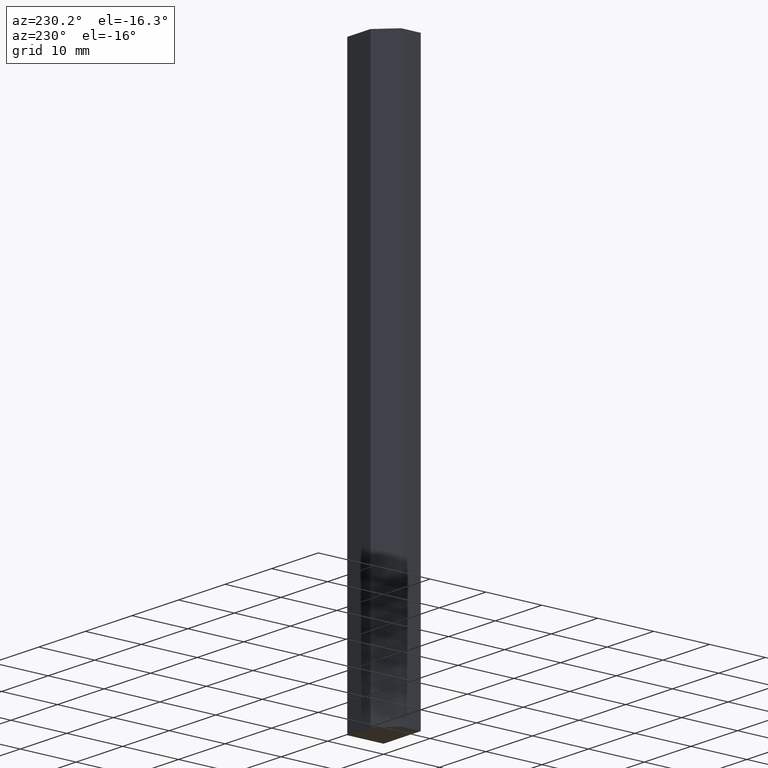
[diagram: clean part render]
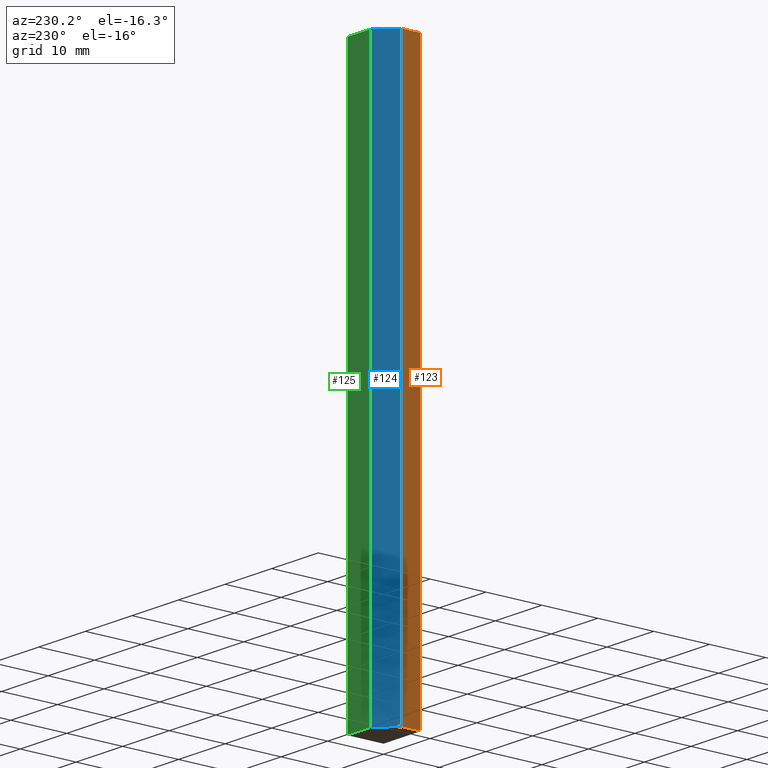
[diagram: same view with three faces highlighted in distinct colors, each labeled with its STEP entity id]
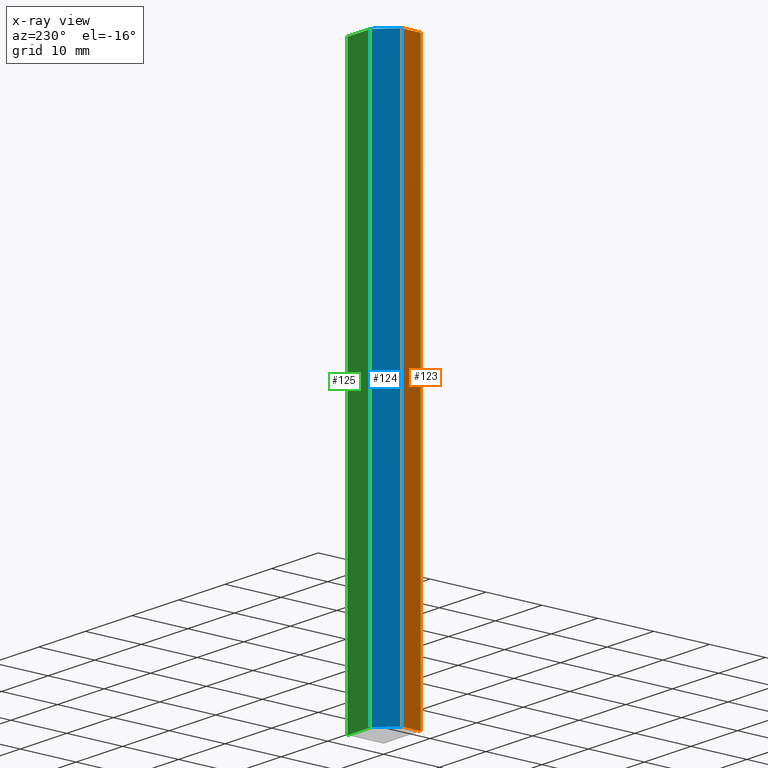
[diagram: x-ray of the same camera — body ghosted, the three highlighted faces saturated]
A machine part, auxiliary view with three faces highlighted in distinct colors.
The next image is the same camera in x-ray (body ghosted, the three faces saturated) — at least one of them is partly hidden behind the body in this view.
Their STEP definitions:

[orange] entity #123 — the highlighted planar face has unit normal (-1, 0, 0).
#17=FACE_OUTER_BOUND('',#24,.T.);
#24=EDGE_LOOP('',(#90,#91,#92,#93));
#32=LINE('',#198,#47);
#35=LINE('',#205,#50);
#36=LINE('',#206,#51);
#37=LINE('',#207,#52);
#47=VECTOR('',#165,10.);
#50=VECTOR('',#170,10.);
#51=VECTOR('',#171,10.);
#52=VECTOR('',#172,10.);
#62=VERTEX_POINT('',#195);
#63=VERTEX_POINT('',#197);
#65=VERTEX_POINT('',#203);
#66=VERTEX_POINT('',#204);
#72=EDGE_CURVE('',#63,#62,#32,.T.);
#75=EDGE_CURVE('',#65,#66,#35,.T.);
#76=EDGE_CURVE('',#66,#63,#36,.T.);
#77=EDGE_CURVE('',#65,#62,#37,.T.);
#90=ORIENTED_EDGE('',*,*,#75,.T.);
#91=ORIENTED_EDGE('',*,*,#76,.T.);
#92=ORIENTED_EDGE('',*,*,#72,.T.);
#93=ORIENTED_EDGE('',*,*,#77,.F.);
#116=PLANE('',#153);
#123=ADVANCED_FACE('',(#17),#116,.T.);
#153=AXIS2_PLACEMENT_3D('',#202,#168,#169);
#165=DIRECTION('',(0.,-1.,0.));
#168=DIRECTION('center_axis',(-1.,0.,0.));
#169=DIRECTION('ref_axis',(0.,0.,1.));
#170=DIRECTION('',(0.,1.,0.));
#171=DIRECTION('',(0.,0.,-1.));
#172=DIRECTION('',(0.,0.,-1.));
#195=CARTESIAN_POINT('',(-8.,1.11022302462516E-15,-50.));
#197=CARTESIAN_POINT('',(-8.,3.5,-50.));
#198=CARTESIAN_POINT('',(-8.,1.11022302462516E-15,-50.));
#202=CARTESIAN_POINT('Origin',(-8.,1.11022302462516E-15,0.));
#203=CARTESIAN_POINT('',(-8.,1.11022302462516E-15,50.));
#204=CARTESIAN_POINT('',(-8.,3.5,50.));
#205=CARTESIAN_POINT('',(-8.,1.11022302462516E-15,50.));
#206=CARTESIAN_POINT('',(-8.,3.5,0.));
#207=CARTESIAN_POINT('',(-8.,1.11022302462516E-15,0.));

[blue] entity #124 — the highlighted planar face has unit normal (-0.7071, 0.7071, 0).
#18=FACE_OUTER_BOUND('',#25,.T.);
#25=EDGE_LOOP('',(#94,#95,#96,#97));
#33=LINE('',#200,#48);
#36=LINE('',#206,#51);
#38=LINE('',#210,#53);
#39=LINE('',#211,#54);
#48=VECTOR('',#166,10.);
#51=VECTOR('',#171,10.);
#53=VECTOR('',#175,10.);
#54=VECTOR('',#176,10.);
#63=VERTEX_POINT('',#197);
#64=VERTEX_POINT('',#199);
#66=VERTEX_POINT('',#204);
#67=VERTEX_POINT('',#209);
#73=EDGE_CURVE('',#64,#63,#33,.T.);
#76=EDGE_CURVE('',#66,#63,#36,.T.);
#78=EDGE_CURVE('',#66,#67,#38,.T.);
#79=EDGE_CURVE('',#67,#64,#39,.T.);
#94=ORIENTED_EDGE('',*,*,#78,.T.);
#95=ORIENTED_EDGE('',*,*,#79,.T.);
#96=ORIENTED_EDGE('',*,*,#73,.T.);
#97=ORIENTED_EDGE('',*,*,#76,.F.);
#117=PLANE('',#154);
#124=ADVANCED_FACE('',(#18),#117,.T.);
#154=AXIS2_PLACEMENT_3D('',#208,#173,#174);
#166=DIRECTION('',(-0.707106781186547,-0.707106781186548,0.));
#171=DIRECTION('',(0.,0.,-1.));
#173=DIRECTION('center_axis',(-0.707106781186548,0.707106781186547,0.));
#174=DIRECTION('ref_axis',(0.,0.,1.));
#175=DIRECTION('',(0.707106781186547,0.707106781186548,0.));
#176=DIRECTION('',(0.,0.,-1.));
#197=CARTESIAN_POINT('',(-8.,3.5,-50.));
#199=CARTESIAN_POINT('',(-5.,6.5,-50.));
#200=CARTESIAN_POINT('',(-8.,3.5,-50.));
#204=CARTESIAN_POINT('',(-8.,3.5,50.));
#206=CARTESIAN_POINT('',(-8.,3.5,0.));
#208=CARTESIAN_POINT('Origin',(-8.,3.5,0.));
#209=CARTESIAN_POINT('',(-5.,6.5,50.));
#210=CARTESIAN_POINT('',(-8.,3.5,50.));
#211=CARTESIAN_POINT('',(-5.,6.5,0.));

[green] entity #125 — the highlighted planar face has unit normal (-0, 1, 0).
#19=FACE_OUTER_BOUND('',#26,.T.);
#26=EDGE_LOOP('',(#98,#99,#100,#101));
#34=LINE('',#201,#49);
#39=LINE('',#211,#54);
#40=LINE('',#214,#55);
#41=LINE('',#215,#56);
#49=VECTOR('',#167,10.);
#54=VECTOR('',#176,10.);
#55=VECTOR('',#179,10.);
#56=VECTOR('',#180,10.);
#61=VERTEX_POINT('',#193);
#64=VERTEX_POINT('',#199);
#67=VERTEX_POINT('',#209);
#68=VERTEX_POINT('',#213);
#74=EDGE_CURVE('',#61,#64,#34,.T.);
#79=EDGE_CURVE('',#67,#64,#39,.T.);
#80=EDGE_CURVE('',#67,#68,#40,.T.);
#81=EDGE_CURVE('',#68,#61,#41,.T.);
#98=ORIENTED_EDGE('',*,*,#80,.T.);
#99=ORIENTED_EDGE('',*,*,#81,.T.);
#100=ORIENTED_EDGE('',*,*,#74,.T.);
#101=ORIENTED_EDGE('',*,*,#79,.F.);
#118=PLANE('',#155);
#125=ADVANCED_FACE('',(#19),#118,.T.);
#155=AXIS2_PLACEMENT_3D('',#212,#177,#178);
#167=DIRECTION('',(-1.,-4.44089209850063E-16,0.));
#176=DIRECTION('',(0.,0.,-1.));
#177=DIRECTION('center_axis',(-4.44089209850063E-16,1.,0.));
#178=DIRECTION('ref_axis',(0.,0.,1.));
#179=DIRECTION('',(1.,4.44089209850063E-16,0.));
#180=DIRECTION('',(0.,0.,-1.));
#193=CARTESIAN_POINT('',(2.22044604925031E-15,6.50000000000001,-50.));
#199=CARTESIAN_POINT('',(-5.,6.5,-50.));
#201=CARTESIAN_POINT('',(-5.,6.5,-50.));
#209=CARTESIAN_POINT('',(-5.,6.5,50.));
#211=CARTESIAN_POINT('',(-5.,6.5,0.));
#212=CARTESIAN_POINT('Origin',(-5.,6.5,0.));
#213=CARTESIAN_POINT('',(2.22044604925031E-15,6.50000000000001,50.));
#214=CARTESIAN_POINT('',(-5.,6.5,50.));
#215=CARTESIAN_POINT('',(2.22044604925031E-15,6.50000000000001,0.));